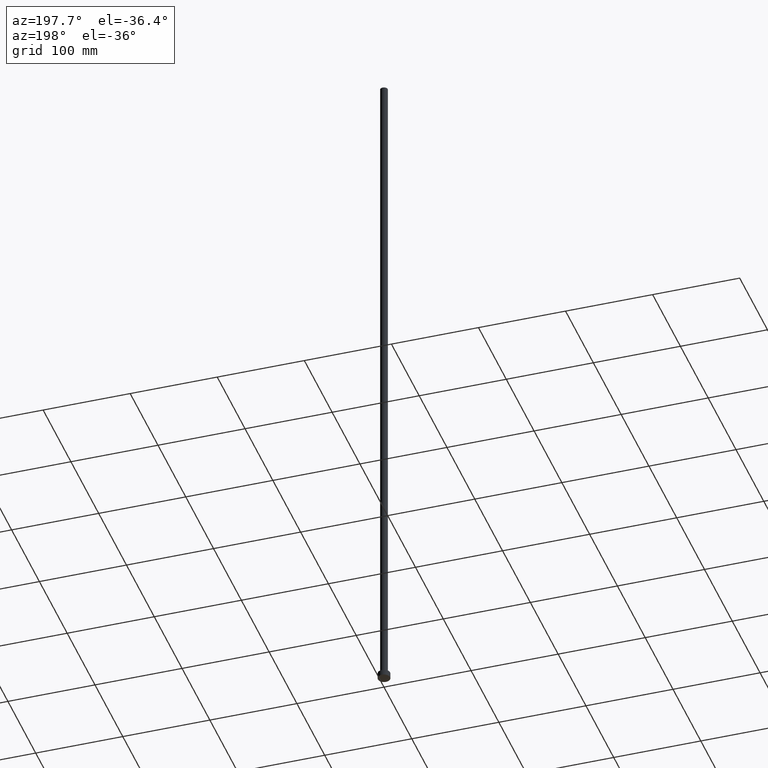
[diagram: clean part render]
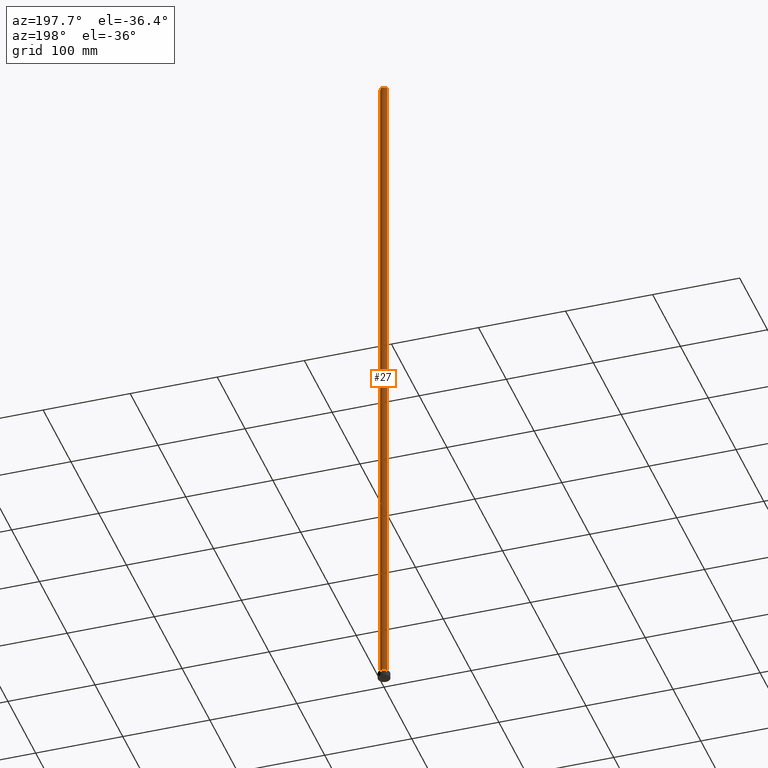
[diagram: same view with one face highlighted and labeled with its STEP entity id]
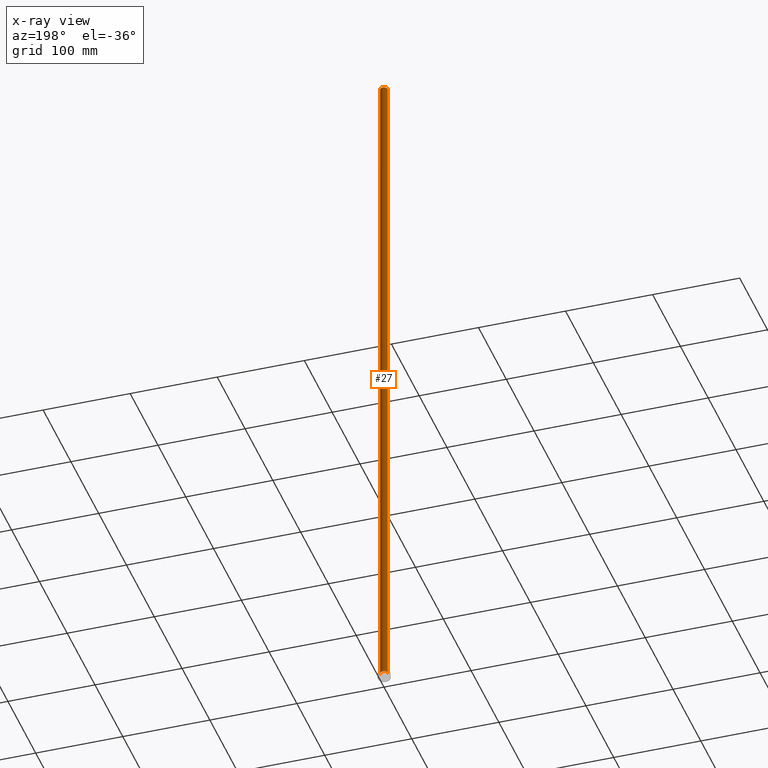
[diagram: x-ray of the same camera — body ghosted, the highlighted face saturated]
A machine part, auxiliary view. The second image highlights one B-rep face of the part: STEP entity #27.
The next image is the same camera in x-ray: the body ghosted, the highlighted face saturated — about 0% of this face is hidden behind the body in this view.
In plain terms, the highlighted cylindrical surface (edge-blend (fillet) strip) has radius 4.25 mm, axis along (-0, -0, -1).
Its self-contained STEP definition (entity closure, byte-faithful):
#9 = DIRECTION ( 'NONE',  ( -0.000000000000000000, -0.000000000000000000, -1.000000000000000000 ) ) ;
#14 = CARTESIAN_POINT ( 'NONE',  ( -4.250000000000000000, 0.000000000000000000, 6.500000000000000000 ) ) ;
#16 = CIRCLE ( 'NONE', #252, 4.250000000000000000 ) ;
#17 = CARTESIAN_POINT ( 'NONE',  ( 0.000000000000000000, 0.000000000000000000, 799.9999999999998863 ) ) ;
#19 = EDGE_CURVE ( 'NONE', #238, #89, #16, .T. ) ;
#22 = VECTOR ( 'NONE', #46, 1000.000000000000000 ) ;
#27 = ADVANCED_FACE ( 'NONE', ( #224 ), #37, .T. ) ;
#37 = CYLINDRICAL_SURFACE ( 'NONE', #54, 4.250000000000000000 ) ;
#46 = DIRECTION ( 'NONE',  ( -0.000000000000000000, -0.000000000000000000, -1.000000000000000000 ) ) ;
#54 = AXIS2_PLACEMENT_3D ( 'NONE', #192, #76, #129 ) ;
#59 = CARTESIAN_POINT ( 'NONE',  ( -4.250000000000000000, 0.000000000000000000, 799.9999999999998863 ) ) ;
#65 = CARTESIAN_POINT ( 'NONE',  ( 4.250000000000000000, 5.204748896376250699E-16, 6.500000000000000000 ) ) ;
#76 = DIRECTION ( 'NONE',  ( -0.000000000000000000, -0.000000000000000000, -1.000000000000000000 ) ) ;
#77 = DIRECTION ( 'NONE',  ( 1.000000000000000000, 0.000000000000000000, 0.000000000000000000 ) ) ;
#87 = EDGE_LOOP ( 'NONE', ( #164, #88, #182, #161 ) ) ;
#88 = ORIENTED_EDGE ( 'NONE', *, *, #170, .T. ) ;
#89 = VERTEX_POINT ( 'NONE', #14 ) ;
#116 = CARTESIAN_POINT ( 'NONE',  ( 4.250000000000000000, 5.204748896376250699E-16, 799.9999999999998863 ) ) ;
#125 = DIRECTION ( 'NONE',  ( 1.000000000000000000, 0.000000000000000000, 0.000000000000000000 ) ) ;
#129 = DIRECTION ( 'NONE',  ( -1.000000000000000000, 0.000000000000000000, 0.000000000000000000 ) ) ;
#131 = DIRECTION ( 'NONE',  ( 0.000000000000000000, 0.000000000000000000, 1.000000000000000000 ) ) ;
#147 = DIRECTION ( 'NONE',  ( 0.000000000000000000, 0.000000000000000000, 1.000000000000000000 ) ) ;
#148 = LINE ( 'NONE', #251, #208 ) ;
#152 = EDGE_CURVE ( 'NONE', #240, #160, #165, .T. ) ;
#160 = VERTEX_POINT ( 'NONE', #59 ) ;
#161 = ORIENTED_EDGE ( 'NONE', *, *, #218, .F. ) ;
#164 = ORIENTED_EDGE ( 'NONE', *, *, #152, .F. ) ;
#165 = CIRCLE ( 'NONE', #231, 4.250000000000000000 ) ;
#170 = EDGE_CURVE ( 'NONE', #240, #238, #148, .T. ) ;
#174 = CARTESIAN_POINT ( 'NONE',  ( -4.250000000000000000, 0.000000000000000000, 799.9999999999998863 ) ) ;
#182 = ORIENTED_EDGE ( 'NONE', *, *, #19, .T. ) ;
#192 = CARTESIAN_POINT ( 'NONE',  ( 0.000000000000000000, 0.000000000000000000, 799.9999999999998863 ) ) ;
#208 = VECTOR ( 'NONE', #9, 1000.000000000000000 ) ;
#218 = EDGE_CURVE ( 'NONE', #160, #89, #234, .T. ) ;
#224 = FACE_OUTER_BOUND ( 'NONE', #87, .T. ) ;
#231 = AXIS2_PLACEMENT_3D ( 'NONE', #17, #131, #77 ) ;
#234 = LINE ( 'NONE', #174, #22 ) ;
#238 = VERTEX_POINT ( 'NONE', #65 ) ;
#240 = VERTEX_POINT ( 'NONE', #116 ) ;
#249 = CARTESIAN_POINT ( 'NONE',  ( 0.000000000000000000, 0.000000000000000000, 6.500000000000000000 ) ) ;
#251 = CARTESIAN_POINT ( 'NONE',  ( 4.250000000000000000, 5.204748896376250699E-16, 799.9999999999998863 ) ) ;
#252 = AXIS2_PLACEMENT_3D ( 'NONE', #249, #147, #125 ) ;